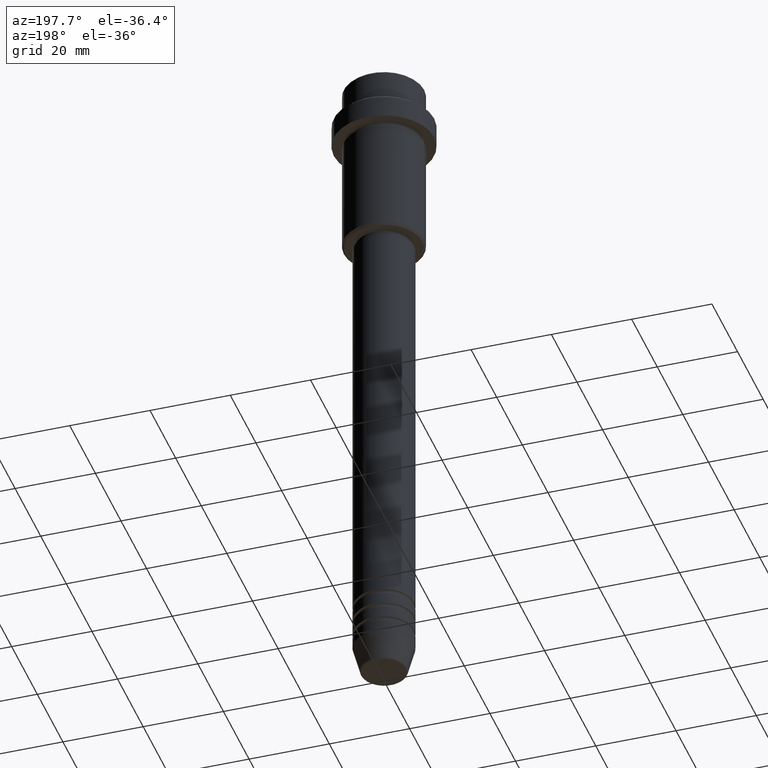
[diagram: clean part render]
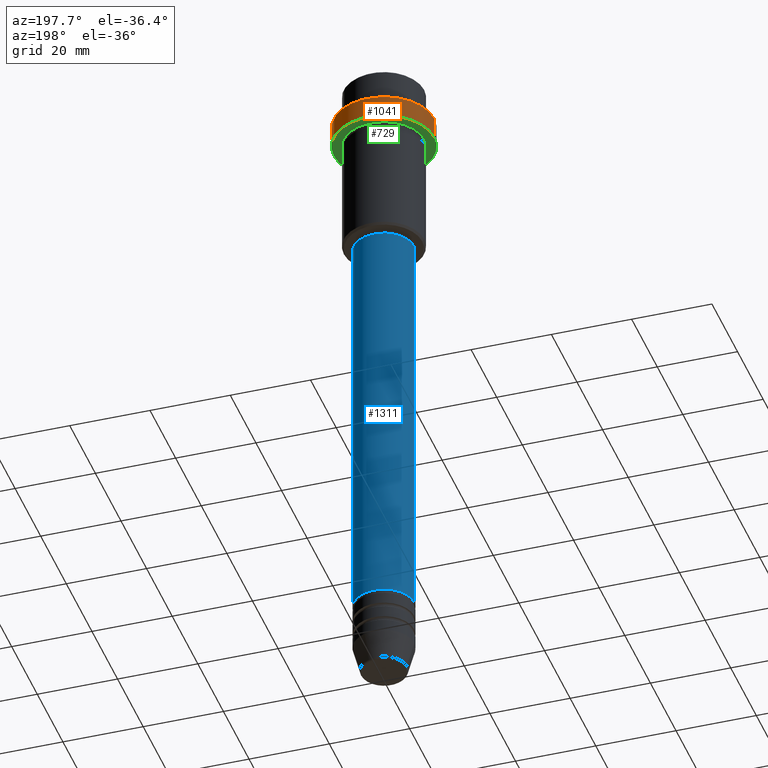
[diagram: same view with three faces highlighted in distinct colors, each labeled with its STEP entity id]
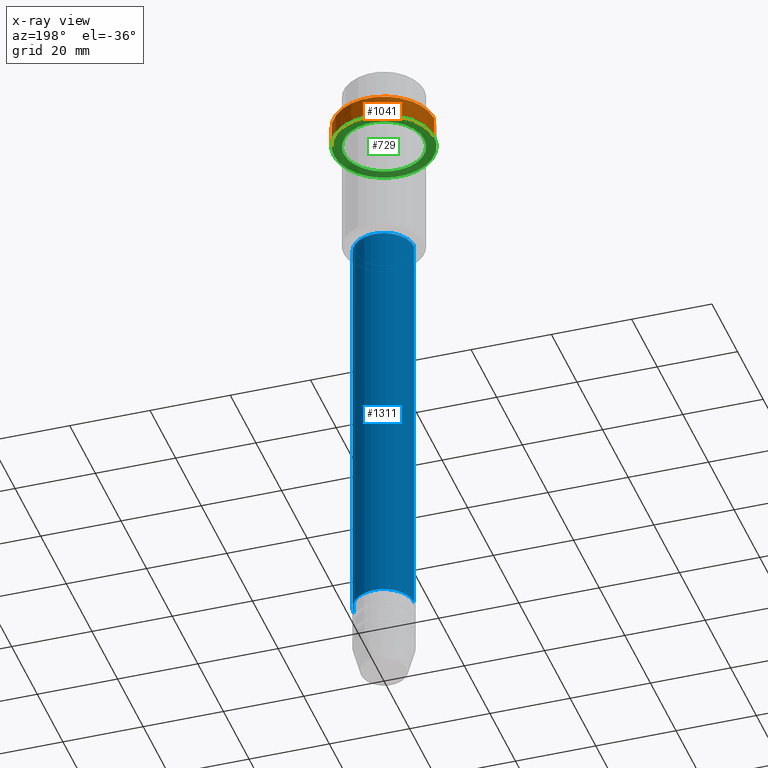
[diagram: x-ray of the same camera — body ghosted, the three highlighted faces saturated]
A machine part, auxiliary view with three faces highlighted in distinct colors.
The next image is the same camera in x-ray (body ghosted, the three faces saturated) — at least one of them is partly hidden behind the body in this view.
Their STEP definitions:

[orange] entity #1041 — the highlighted cylindrical surface (partial cylindrical patch) has radius 12.5 mm, axis along (-0, -0, 1).
#17 = EDGE_CURVE ( 'NONE', #620, #1031, #146, .T. ) ;
#27 = DIRECTION ( 'NONE',  ( -0.000000000000000000, -0.000000000000000000, 1.000000000000000000 ) ) ;
#71 = DIRECTION ( 'NONE',  ( 1.000000000000000000, 0.000000000000000000, 0.000000000000000000 ) ) ;
#86 = LINE ( 'NONE', #313, #1335 ) ;
#146 = CIRCLE ( 'NONE', #174, 12.50000000000000000 ) ;
#169 = CARTESIAN_POINT ( 'NONE',  ( 0.000000000000000000, 0.000000000000000000, -9.499999999999976907 ) ) ;
#174 = AXIS2_PLACEMENT_3D ( 'NONE', #1127, #1011, #460 ) ;
#204 = FACE_OUTER_BOUND ( 'NONE', #322, .T. ) ;
#251 = LINE ( 'NONE', #268, #1026 ) ;
#268 = CARTESIAN_POINT ( 'NONE',  ( -12.50000000000000000, 1.530808498934191521E-15, 0.000000000000000000 ) ) ;
#313 = CARTESIAN_POINT ( 'NONE',  ( 12.50000000000000000, 0.000000000000000000, 0.000000000000000000 ) ) ;
#319 = CARTESIAN_POINT ( 'NONE',  ( -12.50000000000000000, 1.530808498934191521E-15, -9.499999999999976907 ) ) ;
#322 = EDGE_LOOP ( 'NONE', ( #837, #1368, #748, #1169 ) ) ;
#460 = DIRECTION ( 'NONE',  ( 1.000000000000000000, 0.000000000000000000, 0.000000000000000000 ) ) ;
#487 = VERTEX_POINT ( 'NONE', #602 ) ;
#602 = CARTESIAN_POINT ( 'NONE',  ( 12.50000000000000000, 0.000000000000000000, -9.499999999999976907 ) ) ;
#615 = CARTESIAN_POINT ( 'NONE',  ( -12.50000000000000000, 1.530808498934191521E-15, -15.00000000000000000 ) ) ;
#620 = VERTEX_POINT ( 'NONE', #739 ) ;
#636 = CYLINDRICAL_SURFACE ( 'NONE', #932, 12.50000000000000000 ) ;
#658 = AXIS2_PLACEMENT_3D ( 'NONE', #169, #805, #912 ) ;
#739 = CARTESIAN_POINT ( 'NONE',  ( 12.50000000000000000, 0.000000000000000000, -15.00000000000000000 ) ) ;
#745 = DIRECTION ( 'NONE',  ( -0.000000000000000000, -0.000000000000000000, 1.000000000000000000 ) ) ;
#748 = ORIENTED_EDGE ( 'NONE', *, *, #1347, .T. ) ;
#765 = CIRCLE ( 'NONE', #658, 12.50000000000000000 ) ;
#805 = DIRECTION ( 'NONE',  ( 0.000000000000000000, 0.000000000000000000, -1.000000000000000000 ) ) ;
#837 = ORIENTED_EDGE ( 'NONE', *, *, #17, .T. ) ;
#912 = DIRECTION ( 'NONE',  ( 1.000000000000000000, 0.000000000000000000, 0.000000000000000000 ) ) ;
#932 = AXIS2_PLACEMENT_3D ( 'NONE', #1300, #1282, #71 ) ;
#1011 = DIRECTION ( 'NONE',  ( -0.000000000000000000, -0.000000000000000000, 1.000000000000000000 ) ) ;
#1026 = VECTOR ( 'NONE', #27, 1000.000000000000000 ) ;
#1031 = VERTEX_POINT ( 'NONE', #615 ) ;
#1041 = ADVANCED_FACE ( 'NONE', ( #204 ), #636, .T. ) ;
#1056 = VERTEX_POINT ( 'NONE', #319 ) ;
#1107 = EDGE_CURVE ( 'NONE', #620, #487, #86, .T. ) ;
#1127 = CARTESIAN_POINT ( 'NONE',  ( 0.000000000000000000, 0.000000000000000000, -15.00000000000000000 ) ) ;
#1169 = ORIENTED_EDGE ( 'NONE', *, *, #1107, .F. ) ;
#1282 = DIRECTION ( 'NONE',  ( -0.000000000000000000, -0.000000000000000000, 1.000000000000000000 ) ) ;
#1300 = CARTESIAN_POINT ( 'NONE',  ( 0.000000000000000000, 0.000000000000000000, 0.000000000000000000 ) ) ;
#1321 = EDGE_CURVE ( 'NONE', #1031, #1056, #251, .T. ) ;
#1335 = VECTOR ( 'NONE', #745, 1000.000000000000000 ) ;
#1347 = EDGE_CURVE ( 'NONE', #1056, #487, #765, .T. ) ;
#1368 = ORIENTED_EDGE ( 'NONE', *, *, #1321, .T. ) ;

[blue] entity #1311 — the highlighted cylindrical surface (edge-blend (fillet) strip) has radius 7.5 mm, axis along (-0, -0, 1).
#4 = VERTEX_POINT ( 'NONE', #898 ) ;
#33 = CIRCLE ( 'NONE', #226, 7.500000000000000000 ) ;
#51 = DIRECTION ( 'NONE',  ( 1.000000000000000000, 0.000000000000000000, 0.000000000000000000 ) ) ;
#94 = ORIENTED_EDGE ( 'NONE', *, *, #835, .T. ) ;
#131 = DIRECTION ( 'NONE',  ( -0.000000000000000000, -0.000000000000000000, 1.000000000000000000 ) ) ;
#134 = CYLINDRICAL_SURFACE ( 'NONE', #789, 7.500000000000000000 ) ;
#226 = AXIS2_PLACEMENT_3D ( 'NONE', #1088, #1386, #962 ) ;
#274 = CARTESIAN_POINT ( 'NONE',  ( 0.000000000000000000, 0.000000000000000000, 0.000000000000000000 ) ) ;
#333 = CARTESIAN_POINT ( 'NONE',  ( 7.500000000000000000, 0.000000000000000000, -150.9999999999999147 ) ) ;
#391 = CARTESIAN_POINT ( 'NONE',  ( 0.000000000000000000, 0.000000000000000000, -150.9999999999999147 ) ) ;
#403 = ORIENTED_EDGE ( 'NONE', *, *, #578, .F. ) ;
#417 = CARTESIAN_POINT ( 'NONE',  ( -7.500000000000000000, 9.184850993605147944E-16, -150.9999999999999147 ) ) ;
#431 = EDGE_CURVE ( 'NONE', #730, #1014, #1073, .T. ) ;
#445 = VECTOR ( 'NONE', #131, 1000.000000000000000 ) ;
#461 = DIRECTION ( 'NONE',  ( -0.000000000000000000, -0.000000000000000000, 1.000000000000000000 ) ) ;
#501 = VERTEX_POINT ( 'NONE', #1237 ) ;
#562 = CARTESIAN_POINT ( 'NONE',  ( 7.500000000000000000, 0.000000000000000000, 0.000000000000000000 ) ) ;
#578 = EDGE_CURVE ( 'NONE', #501, #4, #33, .T. ) ;
#730 = VERTEX_POINT ( 'NONE', #333 ) ;
#753 = EDGE_CURVE ( 'NONE', #730, #501, #986, .T. ) ;
#783 = ORIENTED_EDGE ( 'NONE', *, *, #753, .F. ) ;
#789 = AXIS2_PLACEMENT_3D ( 'NONE', #274, #1027, #51 ) ;
#796 = DIRECTION ( 'NONE',  ( -0.000000000000000000, -0.000000000000000000, 1.000000000000000000 ) ) ;
#835 = EDGE_CURVE ( 'NONE', #1014, #4, #1221, .T. ) ;
#898 = CARTESIAN_POINT ( 'NONE',  ( -7.500000000000000000, 9.184850993605147944E-16, -46.00000000000000000 ) ) ;
#937 = DIRECTION ( 'NONE',  ( 1.000000000000000000, 0.000000000000000000, 0.000000000000000000 ) ) ;
#962 = DIRECTION ( 'NONE',  ( 1.000000000000000000, 0.000000000000000000, 0.000000000000000000 ) ) ;
#986 = LINE ( 'NONE', #562, #1021 ) ;
#1014 = VERTEX_POINT ( 'NONE', #417 ) ;
#1021 = VECTOR ( 'NONE', #461, 1000.000000000000000 ) ;
#1027 = DIRECTION ( 'NONE',  ( -0.000000000000000000, -0.000000000000000000, 1.000000000000000000 ) ) ;
#1073 = CIRCLE ( 'NONE', #1312, 7.500000000000000000 ) ;
#1086 = ORIENTED_EDGE ( 'NONE', *, *, #431, .T. ) ;
#1088 = CARTESIAN_POINT ( 'NONE',  ( 0.000000000000000000, 0.000000000000000000, -46.00000000000000000 ) ) ;
#1117 = CARTESIAN_POINT ( 'NONE',  ( -7.500000000000000000, 9.184850993605147944E-16, 0.000000000000000000 ) ) ;
#1145 = EDGE_LOOP ( 'NONE', ( #1086, #94, #403, #783 ) ) ;
#1221 = LINE ( 'NONE', #1117, #445 ) ;
#1237 = CARTESIAN_POINT ( 'NONE',  ( 7.500000000000000000, 0.000000000000000000, -46.00000000000000000 ) ) ;
#1258 = FACE_OUTER_BOUND ( 'NONE', #1145, .T. ) ;
#1311 = ADVANCED_FACE ( 'NONE', ( #1258 ), #134, .T. ) ;
#1312 = AXIS2_PLACEMENT_3D ( 'NONE', #391, #796, #937 ) ;
#1386 = DIRECTION ( 'NONE',  ( -0.000000000000000000, -0.000000000000000000, 1.000000000000000000 ) ) ;

[green] entity #729 — the highlighted planar face has unit normal (0, 0, -1).
#17 = EDGE_CURVE ( 'NONE', #620, #1031, #146, .T. ) ;
#32 = CIRCLE ( 'NONE', #198, 9.999999999999992895 ) ;
#39 = EDGE_LOOP ( 'NONE', ( #1341, #318 ) ) ;
#123 = EDGE_CURVE ( 'NONE', #388, #200, #32, .T. ) ;
#133 = CARTESIAN_POINT ( 'NONE',  ( 0.000000000000000000, 0.000000000000000000, -15.00000000000000000 ) ) ;
#146 = CIRCLE ( 'NONE', #174, 12.50000000000000000 ) ;
#174 = AXIS2_PLACEMENT_3D ( 'NONE', #1127, #1011, #460 ) ;
#198 = AXIS2_PLACEMENT_3D ( 'NONE', #670, #348, #429 ) ;
#200 = VERTEX_POINT ( 'NONE', #652 ) ;
#308 = EDGE_CURVE ( 'NONE', #200, #388, #1357, .T. ) ;
#318 = ORIENTED_EDGE ( 'NONE', *, *, #1207, .F. ) ;
#339 = CARTESIAN_POINT ( 'NONE',  ( 0.000000000000000000, 0.000000000000000000, -15.00000000000000000 ) ) ;
#348 = DIRECTION ( 'NONE',  ( -0.000000000000000000, -0.000000000000000000, 1.000000000000000000 ) ) ;
#352 = CARTESIAN_POINT ( 'NONE',  ( 0.000000000000000000, 12.50000000000000000, -15.00000000000000000 ) ) ;
#388 = VERTEX_POINT ( 'NONE', #450 ) ;
#429 = DIRECTION ( 'NONE',  ( -1.000000000000000000, 0.000000000000000000, 0.000000000000000000 ) ) ;
#446 = DIRECTION ( 'NONE',  ( 0.000000000000000000, 0.000000000000000000, -1.000000000000000000 ) ) ;
#450 = CARTESIAN_POINT ( 'NONE',  ( 9.999999999999992895, 1.224646799147352468E-15, -15.00000000000000000 ) ) ;
#459 = DIRECTION ( 'NONE',  ( 1.000000000000000000, 0.000000000000000000, 0.000000000000000000 ) ) ;
#460 = DIRECTION ( 'NONE',  ( 1.000000000000000000, 0.000000000000000000, 0.000000000000000000 ) ) ;
#514 = EDGE_LOOP ( 'NONE', ( #1016, #965 ) ) ;
#615 = CARTESIAN_POINT ( 'NONE',  ( -12.50000000000000000, 1.530808498934191521E-15, -15.00000000000000000 ) ) ;
#620 = VERTEX_POINT ( 'NONE', #739 ) ;
#652 = CARTESIAN_POINT ( 'NONE',  ( -9.999999999999992895, 0.000000000000000000, -15.00000000000000000 ) ) ;
#659 = DIRECTION ( 'NONE',  ( -0.000000000000000000, -0.000000000000000000, 1.000000000000000000 ) ) ;
#670 = CARTESIAN_POINT ( 'NONE',  ( 0.000000000000000000, 0.000000000000000000, -15.00000000000000000 ) ) ;
#674 = AXIS2_PLACEMENT_3D ( 'NONE', #352, #446, #758 ) ;
#700 = AXIS2_PLACEMENT_3D ( 'NONE', #339, #981, #459 ) ;
#729 = ADVANCED_FACE ( 'NONE', ( #1319, #1104 ), #1413, .T. ) ;
#739 = CARTESIAN_POINT ( 'NONE',  ( 12.50000000000000000, 0.000000000000000000, -15.00000000000000000 ) ) ;
#758 = DIRECTION ( 'NONE',  ( -1.000000000000000000, 0.000000000000000000, -0.000000000000000000 ) ) ;
#810 = AXIS2_PLACEMENT_3D ( 'NONE', #133, #659, #1217 ) ;
#965 = ORIENTED_EDGE ( 'NONE', *, *, #123, .T. ) ;
#981 = DIRECTION ( 'NONE',  ( -0.000000000000000000, -0.000000000000000000, 1.000000000000000000 ) ) ;
#1011 = DIRECTION ( 'NONE',  ( -0.000000000000000000, -0.000000000000000000, 1.000000000000000000 ) ) ;
#1016 = ORIENTED_EDGE ( 'NONE', *, *, #308, .T. ) ;
#1031 = VERTEX_POINT ( 'NONE', #615 ) ;
#1104 = FACE_OUTER_BOUND ( 'NONE', #39, .T. ) ;
#1127 = CARTESIAN_POINT ( 'NONE',  ( 0.000000000000000000, 0.000000000000000000, -15.00000000000000000 ) ) ;
#1207 = EDGE_CURVE ( 'NONE', #1031, #620, #1314, .T. ) ;
#1217 = DIRECTION ( 'NONE',  ( -1.000000000000000000, 0.000000000000000000, 0.000000000000000000 ) ) ;
#1314 = CIRCLE ( 'NONE', #700, 12.50000000000000000 ) ;
#1319 = FACE_BOUND ( 'NONE', #514, .T. ) ;
#1341 = ORIENTED_EDGE ( 'NONE', *, *, #17, .F. ) ;
#1357 = CIRCLE ( 'NONE', #810, 9.999999999999992895 ) ;
#1413 = PLANE ( 'NONE',  #674 ) ;